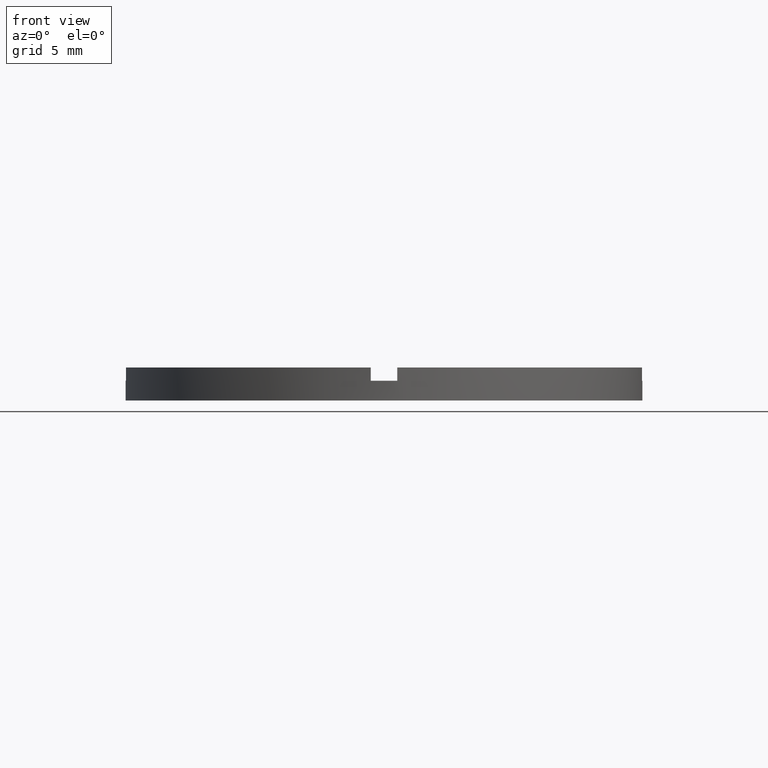
[diagram: clean part render]
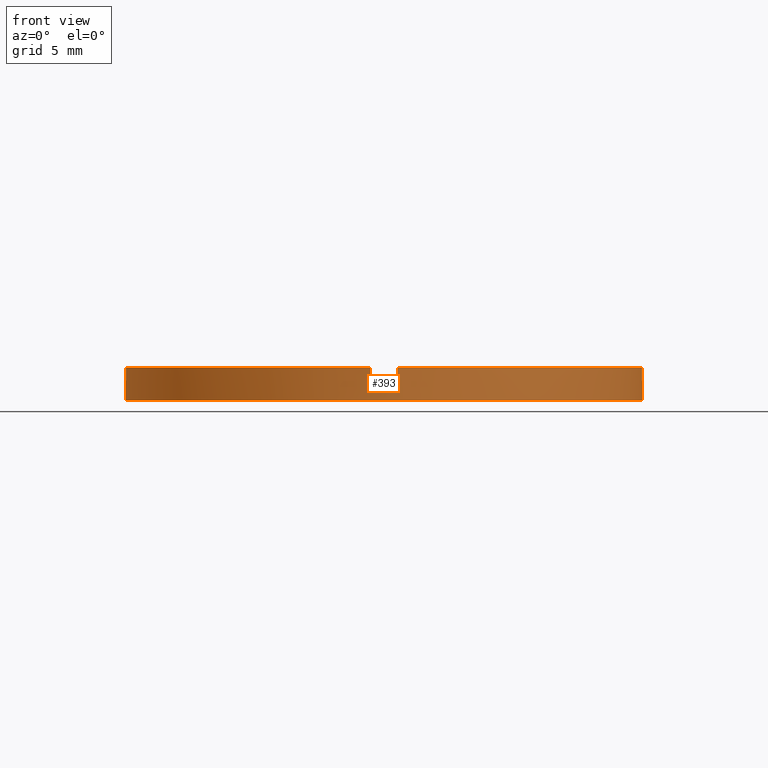
[diagram: same view with one face highlighted and labeled with its STEP entity id]
A machine part, front view. The second image highlights one B-rep face of the part: STEP entity #393.
In plain terms, the highlighted cylindrical surface (partial cylindrical patch) has radius 19.5 mm, axis along (-0, -0, -1).
Its self-contained STEP definition (entity closure, byte-faithful):
#8 = CARTESIAN_POINT ( 'NONE',  ( 19.50000000000000000, 2.388061258337338939E-15, 2.500000000000000000 ) ) ;
#14 = CARTESIAN_POINT ( 'NONE',  ( 0.000000000000000000, 0.000000000000000000, 1.500000000000000000 ) ) ;
#40 = LINE ( 'NONE', #94, #284 ) ;
#47 = DIRECTION ( 'NONE',  ( -1.000000000000000000, 0.000000000000000000, 0.000000000000000000 ) ) ;
#48 = VECTOR ( 'NONE', #690, 1000.000000000000000 ) ;
#67 = CARTESIAN_POINT ( 'NONE',  ( 0.000000000000000000, 0.000000000000000000, 0.000000000000000000 ) ) ;
#81 = AXIS2_PLACEMENT_3D ( 'NONE', #67, #542, #656 ) ;
#85 = DIRECTION ( 'NONE',  ( -0.000000000000000000, -0.000000000000000000, -1.000000000000000000 ) ) ;
#91 = VERTEX_POINT ( 'NONE', #157 ) ;
#93 = ORIENTED_EDGE ( 'NONE', *, *, #337, .F. ) ;
#94 = CARTESIAN_POINT ( 'NONE',  ( -19.50000000000000000, 0.000000000000000000, 2.500000000000000000 ) ) ;
#98 = EDGE_CURVE ( 'NONE', #212, #630, #562, .T. ) ;
#102 = ORIENTED_EDGE ( 'NONE', *, *, #98, .F. ) ;
#109 = VERTEX_POINT ( 'NONE', #444 ) ;
#120 = DIRECTION ( 'NONE',  ( 0.000000000000000000, 0.000000000000000000, 1.000000000000000000 ) ) ;
#123 = ORIENTED_EDGE ( 'NONE', *, *, #601, .F. ) ;
#129 = ORIENTED_EDGE ( 'NONE', *, *, #592, .F. ) ;
#132 = DIRECTION ( 'NONE',  ( 0.000000000000000000, 0.000000000000000000, 1.000000000000000000 ) ) ;
#139 = CARTESIAN_POINT ( 'NONE',  ( 0.000000000000000000, 0.000000000000000000, 2.500000000000000000 ) ) ;
#141 = LINE ( 'NONE', #322, #399 ) ;
#147 = VECTOR ( 'NONE', #277, 1000.000000000000000 ) ;
#151 = CIRCLE ( 'NONE', #730, 19.50000000000000000 ) ;
#153 = CIRCLE ( 'NONE', #81, 19.50000000000000000 ) ;
#154 = FACE_OUTER_BOUND ( 'NONE', #246, .T. ) ;
#157 = CARTESIAN_POINT ( 'NONE',  ( -19.47434209415044748, -1.000000000000024203, 1.500000000000000000 ) ) ;
#159 = CYLINDRICAL_SURFACE ( 'NONE', #334, 19.50000000000000000 ) ;
#163 = CIRCLE ( 'NONE', #752, 19.50000000000000000 ) ;
#165 = EDGE_CURVE ( 'NONE', #358, #468, #571, .T. ) ;
#177 = DIRECTION ( 'NONE',  ( 1.000000000000000000, 0.000000000000000000, 0.000000000000000000 ) ) ;
#179 = CARTESIAN_POINT ( 'NONE',  ( 19.47434209415044037, -1.000000000000158540, 1.500000000000000000 ) ) ;
#200 = ORIENTED_EDGE ( 'NONE', *, *, #325, .T. ) ;
#212 = VERTEX_POINT ( 'NONE', #368 ) ;
#225 = DIRECTION ( 'NONE',  ( -0.000000000000000000, -0.000000000000000000, -1.000000000000000000 ) ) ;
#235 = VERTEX_POINT ( 'NONE', #375 ) ;
#246 = EDGE_LOOP ( 'NONE', ( #102, #355, #691, #123, #633, #129, #351, #695, #514, #93, #200, #718 ) ) ;
#277 = DIRECTION ( 'NONE',  ( 0.000000000000000000, 0.000000000000000000, 1.000000000000000000 ) ) ;
#284 = VECTOR ( 'NONE', #225, 1000.000000000000000 ) ;
#301 = VECTOR ( 'NONE', #357, 1000.000000000000000 ) ;
#303 = LINE ( 'NONE', #600, #301 ) ;
#310 = VERTEX_POINT ( 'NONE', #594 ) ;
#321 = CARTESIAN_POINT ( 'NONE',  ( -19.50000000000000000, 0.000000000000000000, 0.000000000000000000 ) ) ;
#322 = CARTESIAN_POINT ( 'NONE',  ( -19.47434209415044748, -1.000000000000024203, 2.500000000000000000 ) ) ;
#325 = EDGE_CURVE ( 'NONE', #517, #657, #40, .T. ) ;
#330 = EDGE_CURVE ( 'NONE', #109, #310, #303, .T. ) ;
#334 = AXIS2_PLACEMENT_3D ( 'NONE', #645, #85, #47 ) ;
#337 = EDGE_CURVE ( 'NONE', #517, #91, #568, .T. ) ;
#340 = CARTESIAN_POINT ( 'NONE',  ( 19.50000000000000000, 2.388061258337338939E-15, 0.000000000000000000 ) ) ;
#351 = ORIENTED_EDGE ( 'NONE', *, *, #330, .T. ) ;
#352 = CARTESIAN_POINT ( 'NONE',  ( 0.000000000000000000, 0.000000000000000000, 2.500000000000000000 ) ) ;
#355 = ORIENTED_EDGE ( 'NONE', *, *, #569, .F. ) ;
#357 = DIRECTION ( 'NONE',  ( 0.000000000000000000, 0.000000000000000000, 1.000000000000000000 ) ) ;
#358 = VERTEX_POINT ( 'NONE', #664 ) ;
#365 = DIRECTION ( 'NONE',  ( -0.000000000000000000, -0.000000000000000000, -1.000000000000000000 ) ) ;
#368 = CARTESIAN_POINT ( 'NONE',  ( 19.50000000000000000, 2.388061258337338939E-15, 1.500000000000000000 ) ) ;
#375 = CARTESIAN_POINT ( 'NONE',  ( 19.47434209415044037, -1.000000000000158540, 2.500000000000000000 ) ) ;
#390 = EDGE_CURVE ( 'NONE', #657, #630, #153, .T. ) ;
#393 = ADVANCED_FACE ( 'NONE', ( #154 ), #159, .T. ) ;
#396 = CARTESIAN_POINT ( 'NONE',  ( 19.47434209415044037, -1.000000000000158540, 2.500000000000000000 ) ) ;
#399 = VECTOR ( 'NONE', #732, 1000.000000000000000 ) ;
#405 = CIRCLE ( 'NONE', #481, 19.50000000000000000 ) ;
#427 = CARTESIAN_POINT ( 'NONE',  ( -19.50000000000000000, 0.000000000000000000, 1.500000000000000000 ) ) ;
#428 = CIRCLE ( 'NONE', #711, 19.50000000000000000 ) ;
#430 = EDGE_CURVE ( 'NONE', #464, #235, #666, .T. ) ;
#444 = CARTESIAN_POINT ( 'NONE',  ( -1.000000000000161426, -19.47434209415043327, 1.500000000000000000 ) ) ;
#445 = DIRECTION ( 'NONE',  ( 0.000000000000000000, 0.000000000000000000, 1.000000000000000000 ) ) ;
#464 = VERTEX_POINT ( 'NONE', #179 ) ;
#465 = VERTEX_POINT ( 'NONE', #480 ) ;
#468 = VERTEX_POINT ( 'NONE', #591 ) ;
#478 = DIRECTION ( 'NONE',  ( -0.000000000000000000, 0.000000000000000000, 1.000000000000000000 ) ) ;
#480 = CARTESIAN_POINT ( 'NONE',  ( -19.47434209415044748, -1.000000000000024203, 2.500000000000000000 ) ) ;
#481 = AXIS2_PLACEMENT_3D ( 'NONE', #550, #478, #599 ) ;
#495 = DIRECTION ( 'NONE',  ( 0.000000000000000000, 0.000000000000000000, 1.000000000000000000 ) ) ;
#514 = ORIENTED_EDGE ( 'NONE', *, *, #743, .T. ) ;
#517 = VERTEX_POINT ( 'NONE', #427 ) ;
#542 = DIRECTION ( 'NONE',  ( 0.000000000000000000, 0.000000000000000000, 1.000000000000000000 ) ) ;
#550 = CARTESIAN_POINT ( 'NONE',  ( 0.000000000000000000, 0.000000000000000000, 1.500000000000000000 ) ) ;
#562 = LINE ( 'NONE', #8, #567 ) ;
#567 = VECTOR ( 'NONE', #365, 1000.000000000000000 ) ;
#568 = CIRCLE ( 'NONE', #765, 19.50000000000000000 ) ;
#569 = EDGE_CURVE ( 'NONE', #464, #212, #151, .T. ) ;
#571 = LINE ( 'NONE', #626, #48 ) ;
#591 = CARTESIAN_POINT ( 'NONE',  ( 0.9999999999998377964, -19.47434209415045459, 1.500000000000000000 ) ) ;
#592 = EDGE_CURVE ( 'NONE', #109, #468, #405, .T. ) ;
#594 = CARTESIAN_POINT ( 'NONE',  ( -1.000000000000161426, -19.47434209415043327, 2.500000000000000000 ) ) ;
#596 = DIRECTION ( 'NONE',  ( 1.000000000000000000, 0.000000000000000000, 0.000000000000000000 ) ) ;
#599 = DIRECTION ( 'NONE',  ( 1.000000000000000000, 0.000000000000000000, 0.000000000000000000 ) ) ;
#600 = CARTESIAN_POINT ( 'NONE',  ( -1.000000000000161871, -19.47434209415043682, 2.500000000000000000 ) ) ;
#601 = EDGE_CURVE ( 'NONE', #358, #235, #163, .T. ) ;
#626 = CARTESIAN_POINT ( 'NONE',  ( 0.9999999999998382405, -19.47434209415045814, 2.500000000000000000 ) ) ;
#630 = VERTEX_POINT ( 'NONE', #340 ) ;
#633 = ORIENTED_EDGE ( 'NONE', *, *, #165, .T. ) ;
#645 = CARTESIAN_POINT ( 'NONE',  ( 0.000000000000000000, 0.000000000000000000, 2.500000000000000000 ) ) ;
#656 = DIRECTION ( 'NONE',  ( 1.000000000000000000, 0.000000000000000000, 0.000000000000000000 ) ) ;
#657 = VERTEX_POINT ( 'NONE', #321 ) ;
#661 = DIRECTION ( 'NONE',  ( 1.000000000000000000, 0.000000000000000000, 0.000000000000000000 ) ) ;
#664 = CARTESIAN_POINT ( 'NONE',  ( 0.9999999999998377964, -19.47434209415045459, 2.500000000000000000 ) ) ;
#666 = LINE ( 'NONE', #396, #147 ) ;
#675 = DIRECTION ( 'NONE',  ( 1.000000000000000000, 0.000000000000000000, 0.000000000000000000 ) ) ;
#690 = DIRECTION ( 'NONE',  ( -0.000000000000000000, -0.000000000000000000, -1.000000000000000000 ) ) ;
#691 = ORIENTED_EDGE ( 'NONE', *, *, #430, .T. ) ;
#695 = ORIENTED_EDGE ( 'NONE', *, *, #699, .F. ) ;
#699 = EDGE_CURVE ( 'NONE', #465, #310, #428, .T. ) ;
#711 = AXIS2_PLACEMENT_3D ( 'NONE', #139, #445, #675 ) ;
#718 = ORIENTED_EDGE ( 'NONE', *, *, #390, .T. ) ;
#730 = AXIS2_PLACEMENT_3D ( 'NONE', #14, #132, #177 ) ;
#732 = DIRECTION ( 'NONE',  ( -0.000000000000000000, -0.000000000000000000, -1.000000000000000000 ) ) ;
#743 = EDGE_CURVE ( 'NONE', #465, #91, #141, .T. ) ;
#752 = AXIS2_PLACEMENT_3D ( 'NONE', #352, #120, #661 ) ;
#765 = AXIS2_PLACEMENT_3D ( 'NONE', #781, #495, #596 ) ;
#781 = CARTESIAN_POINT ( 'NONE',  ( 0.000000000000000000, 0.000000000000000000, 1.500000000000000000 ) ) ;